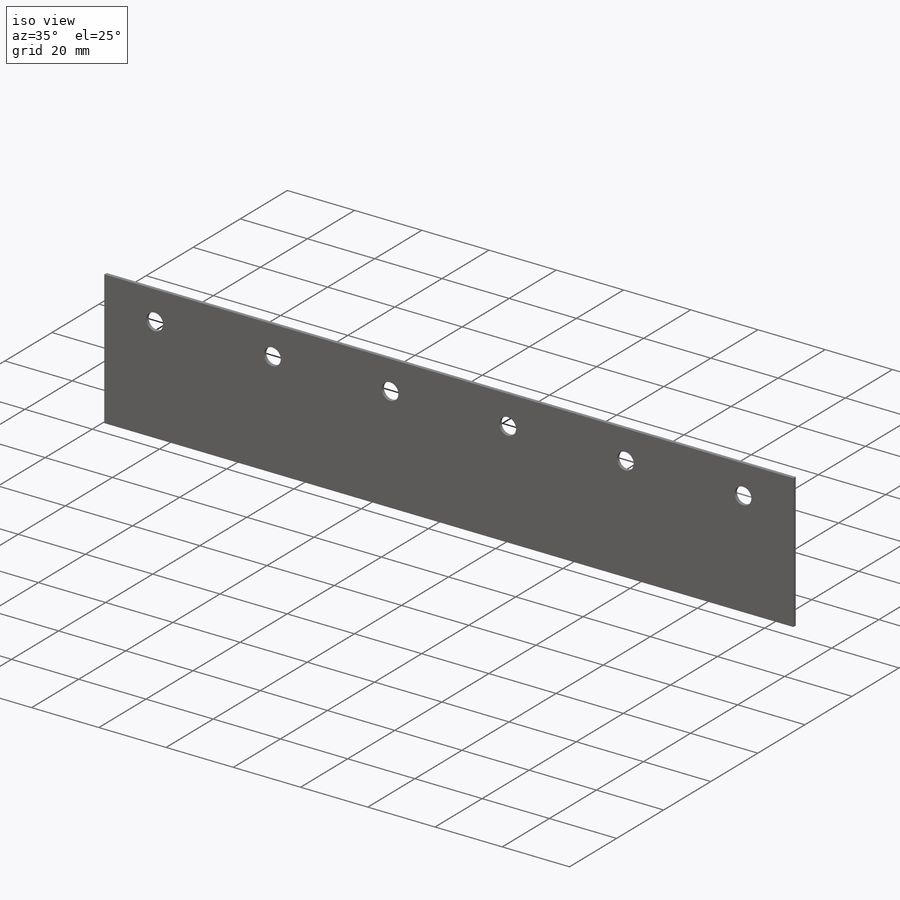
[diagram: iso view]
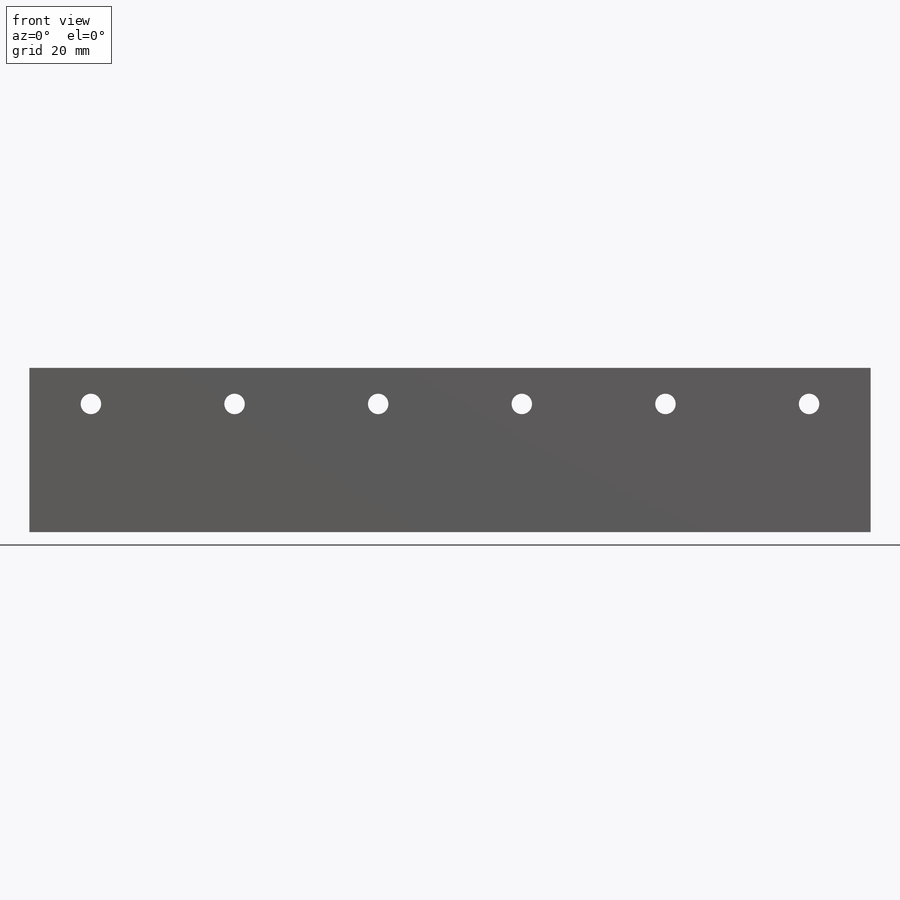
[diagram: front view]
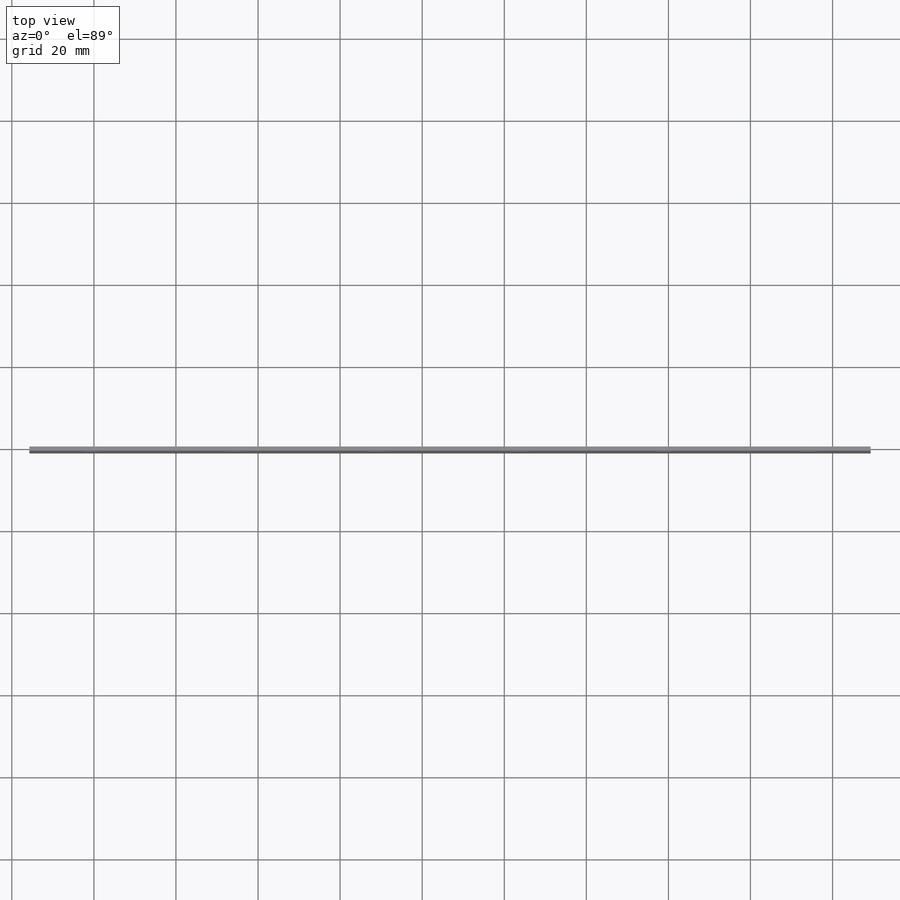
[diagram: top view]
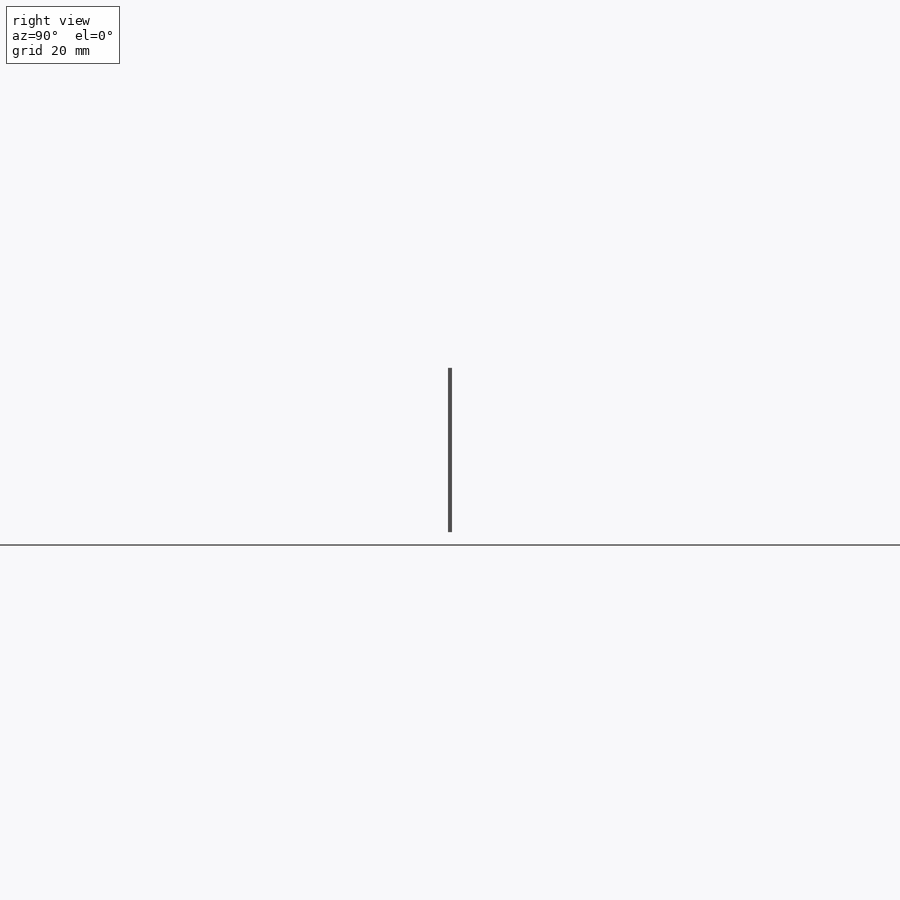
[diagram: right view]
SOLIDWORKS PART (.sldprt)
format: sldprt  version: not decoded by parser v0  size: 153,088 bytes
history: native  units: mm
features: plane x3, sketch x3, material x1, extrude x1, hole x1 (+10 scaffold rows collapsed)
feature tree (19):
  scaffold x10  (default folders/planes/origin — collapsed)
  material  "Materiál <není určen>"
  plane  "Přední rovina"
  plane  "Horní rovina"
  plane  "Pravá rovina"
  sketch  "Sketch1"  dims[D1=205.0mm D2=40.0mm]
  extrude  "Extrude1"  Depth=1mm
  hole  "HoleWzd1"  Diameter=5mm Depth=1mm
  sketch  "Sketch3"  dims[D1=15.0mm D2=15.0mm D3=35.0mm]
  sketch  "Sketch2"  dims[Průměr=5.0mm Hloubka=1.0mm]
decode coverage: 5 of 5 modeling features carry decoded parameters
note: suppression state not decoded; provenance and decode notes live in map.json
